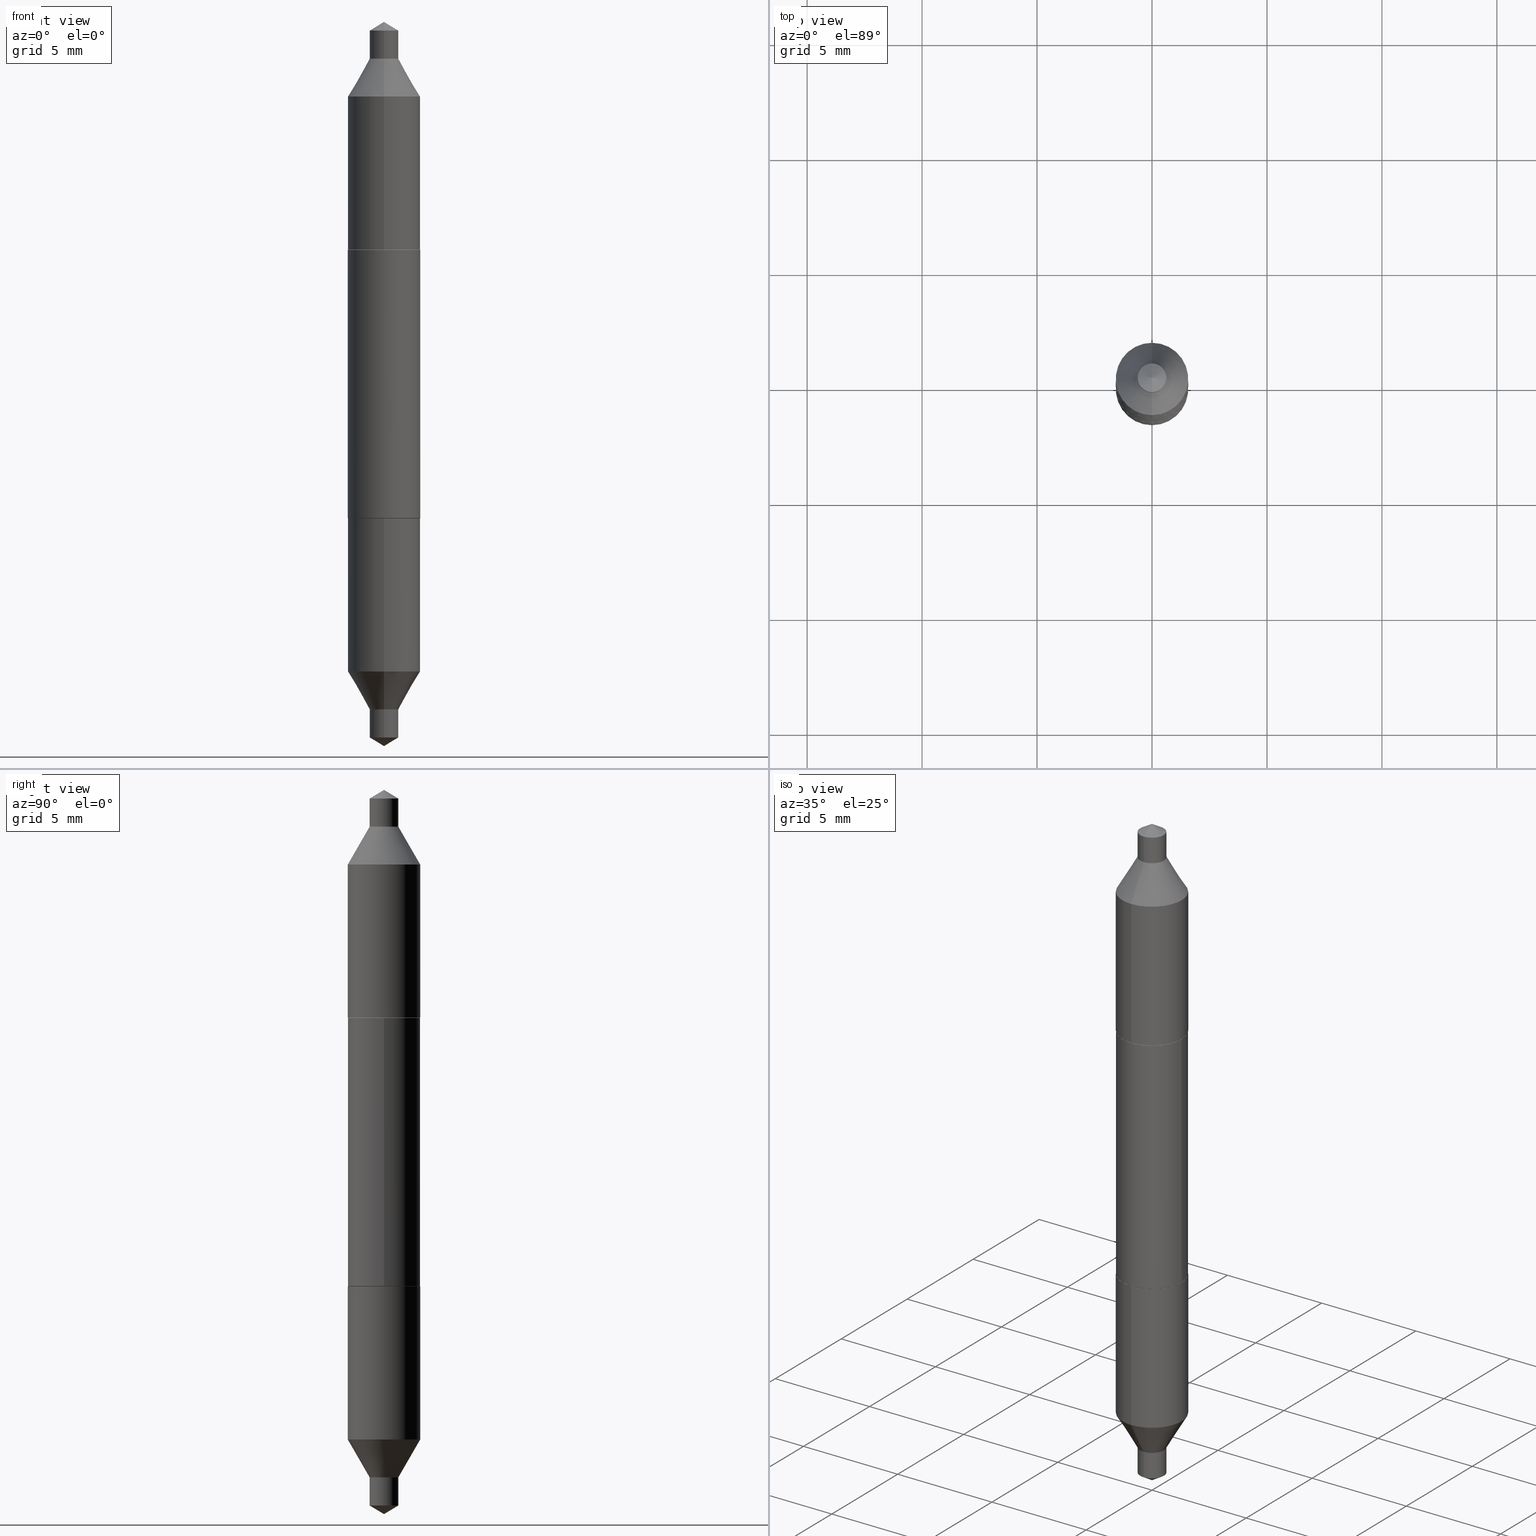
[diagram: canonical four-view strip — front | top / right | iso, engineering-drawing reading convention]
A machine part, canonical four-view strip (front | top / right | iso — engineering-drawing reading convention). The complete STEP part file that produces these views, byte-faithful:
ISO-10303-21;
HEADER;
FILE_DESCRIPTION (( 'STEP AP203' ),
    '1' );
FILE_NAME ('67041.STEP',
    '2024-04-19T15:18:02',
    ( '' ),
    ( '' ),
    'SwSTEP 2.0',
    'SolidWorks 2023',
    '' );
FILE_SCHEMA (( 'CONFIG_CONTROL_DESIGN' ));
ENDSEC;

DATA;
#1 = DIRECTION ( 'NONE',  ( 2.416963263212490591E-29, -3.532302898814723965E-15, -1.000000000000000000 ) ) ;
#2 = FACE_OUTER_BOUND ( 'NONE', #518, .T. ) ;
#3 = ADVANCED_FACE ( 'NONE', ( #360 ), #700, .T. ) ;
#4 = CARTESIAN_POINT ( 'NONE',  ( 4.405364961712676834E-16, 0.06199999999999919464, -0.2300000000000001488 ) ) ;
#5 = LINE ( 'NONE', #470, #157 ) ;
#6 = FACE_OUTER_BOUND ( 'NONE', #15, .T. ) ;
#7 = LINE ( 'NONE', #643, #514 ) ;
#8 = ORIENTED_EDGE ( 'NONE', *, *, #602, .T. ) ;
#9 = DIRECTION ( 'NONE',  ( 6.982962677686265922E-15, 1.000000000000000000, -3.532302898814723965E-15 ) ) ;
#10 = AXIS2_PLACEMENT_3D ( 'NONE', #484, #482, #9 ) ;
#11 = EDGE_CURVE ( 'NONE', #676, #297, #248, .T. ) ;
#12 = CIRCLE ( 'NONE', #249, 0.06150000000000001993 ) ;
#13 = EDGE_CURVE ( 'NONE', #179, #676, #324, .T. ) ;
#14 = APPROVAL_DATE_TIME ( #677, #92 ) ;
#15 = EDGE_LOOP ( 'NONE', ( #522, #408, #438, #450 ) ) ;
#16 = DIRECTION ( 'NONE',  ( -2.416963263212490311E-29, 3.532302898814723965E-15, 1.000000000000000000 ) ) ;
#17 = DIRECTION ( 'NONE',  ( 1.000000000000000000, -6.982962677686265922E-15, 0.000000000000000000 ) ) ;
#18 = ORIENTED_EDGE ( 'NONE', *, *, #493, .T. ) ;
#19 = CARTESIAN_POINT ( 'NONE',  ( -1.717808818710876115E-16, -0.02459999999999918155, 0.2300000000000000377 ) ) ;
#20 = DIRECTION ( 'NONE',  ( 1.000000000000000000, -6.982962677686265922E-15, 0.000000000000000000 ) ) ;
#21 = EDGE_CURVE ( 'NONE', #676, #54, #278, .T. ) ;
#22 = CARTESIAN_POINT ( 'NONE',  ( 0.06200000000000002037, -1.234238653281050355E-15, -0.2294999999999999263 ) ) ;
#23 = CIRCLE ( 'NONE', #424, 0.02459999999999998646 ) ;
#24 = CC_DESIGN_SECURITY_CLASSIFICATION ( #160, ( #656 ) ) ;
#25 = CARTESIAN_POINT ( 'NONE',  ( 0.000000000000000000, 0.000000000000000000, 0.000000000000000000 ) ) ;
#26 = CARTESIAN_POINT ( 'NONE',  ( 1.533864096477825297E-29, -2.139409062900371325E-15, -0.6199999999999999956 ) ) ;
#27 = CC_DESIGN_PERSON_AND_ORGANIZATION_ASSIGNMENT ( #229, #601, ( #109 ) ) ;
#28 = VERTEX_POINT ( 'NONE', #544 ) ;
#29 = DIRECTION ( 'NONE',  ( -6.982962677686265922E-15, -1.000000000000000000, 3.304654831045479808E-15 ) ) ;
#30 = ORIENTED_EDGE ( 'NONE', *, *, #607, .F. ) ;
#31 = COORDINATED_UNIVERSAL_TIME_OFFSET ( 5, 0, .BEHIND. ) ;
#32 = ORIENTED_EDGE ( 'NONE', *, *, #640, .T. ) ;
#33 = CYLINDRICAL_SURFACE ( 'NONE', #349, 0.06199999999999999956 ) ;
#34 = EDGE_LOOP ( 'NONE', ( #132, #365, #611, #415 ) ) ;
#35 = CIRCLE ( 'NONE', #620, 0.02459999999999998299 ) ;
#36 = ADVANCED_FACE ( 'NONE', ( #223 ), #411, .T. ) ;
#37 = AXIS2_PLACEMENT_3D ( 'NONE', #53, #212, #422 ) ;
#38 = APPROVAL_PERSON_ORGANIZATION ( #299, #381, #90 ) ;
#39 = VERTEX_POINT ( 'NONE', #268 ) ;
#40 = CARTESIAN_POINT ( 'NONE',  ( 1.687682507451660463E-16, 0.02460000000000194670, 0.5569999999999999396 ) ) ;
#41 = ORIENTED_EDGE ( 'NONE', *, *, #242, .F. ) ;
#42 = FACE_OUTER_BOUND ( 'NONE', #258, .T. ) ;
#43 = VERTEX_POINT ( 'NONE', #654 ) ;
#44 = VERTEX_POINT ( 'NONE', #542 ) ;
#45 = EDGE_CURVE ( 'NONE', #172, #130, #259, .T. ) ;
#46 = DIRECTION ( 'NONE',  ( -6.982962677686265922E-15, -1.000000000000000000, 3.304654831045479808E-15 ) ) ;
#47 = ORIENTED_EDGE ( 'NONE', *, *, #508, .F. ) ;
#48 = ORIENTED_EDGE ( 'NONE', *, *, #326, .F. ) ;
#49 = CLOSED_SHELL ( 'NONE', ( #97, #128, #651, #136, #253, #530, #3, #660 ) ) ;
#50 = CARTESIAN_POINT ( 'NONE',  ( -1.498517223191743903E-29, 2.190027797265128709E-15, 0.6199999999999999956 ) ) ;
#51 = AXIS2_PLACEMENT_3D ( 'NONE', #540, #327, #378 ) ;
#52 = ORIENTED_EDGE ( 'NONE', *, *, #615, .T. ) ;
#53 = CARTESIAN_POINT ( 'NONE',  ( -1.352804812493065762E-29, 1.958103755846338219E-15, 0.5569999999999999396 ) ) ;
#54 = VERTEX_POINT ( 'NONE', #593 ) ;
#55 = CARTESIAN_POINT ( 'NONE',  ( 1.520751546710408006E-29, -2.158186980487297744E-15, -0.6199999999999999956 ) ) ;
#56 = DIRECTION ( 'NONE',  ( -1.000000000000000000, 6.982962677686265922E-15, -4.876176775795935793E-29 ) ) ;
#57 = EDGE_CURVE ( 'NONE', #142, #697, #329, .T. ) ;
#58 = DIRECTION ( 'NONE',  ( -6.982962677686265922E-15, -1.000000000000000000, 3.304654831045479808E-15 ) ) ;
#59 = AXIS2_PLACEMENT_3D ( 'NONE', #271, #596, #219 ) ;
#60 = FACE_OUTER_BOUND ( 'NONE', #214, .T. ) ;
#61 = CONICAL_SURFACE ( 'NONE', #369, 0.06150000000000001993, 0.7853981633974482790 ) ;
#62 = FACE_OUTER_BOUND ( 'NONE', #699, .T. ) ;
#63 = CARTESIAN_POINT ( 'NONE',  ( -0.06150000000000001993, -3.634076982673504856E-16, -0.2299999999999999267 ) ) ;
#64 = ADVANCED_BREP_SHAPE_REPRESENTATION ( '67041', ( #399, #637, #170, #206 ), #624 ) ;
#65 = DIRECTION ( 'NONE',  ( -2.445468806185136597E-29, 3.491481338843145583E-15, 1.000000000000000000 ) ) ;
#66 = CARTESIAN_POINT ( 'NONE',  ( 1.747935129969982313E-16, 0.02459999999999805745, -0.5570000000000000506 ) ) ;
#67 = CC_DESIGN_DATE_AND_TIME_ASSIGNMENT ( #549, #74, ( #109 ) ) ;
#68 = ADVANCED_FACE ( 'NONE', ( #648 ), #435, .F. ) ;
#69 = DIRECTION ( 'NONE',  ( -2.473974349157782882E-29, 3.450659778871567200E-15, 1.000000000000000000 ) ) ;
#70 = CARTESIAN_POINT ( 'NONE',  ( 1.533979078061162710E-29, -2.139409062900371325E-15, -0.6199999999999999956 ) ) ;
#71 = AXIS2_PLACEMENT_3D ( 'NONE', #506, #668, #29 ) ;
#72 = VECTOR ( 'NONE', #321, 39.37007874015748854 ) ;
#73 = VECTOR ( 'NONE', #69, 39.37007874015748143 ) ;
#74 = DATE_TIME_ROLE ( 'creation_date' ) ;
#75 = ORIENTED_EDGE ( 'NONE', *, *, #143, .F. ) ;
#76 = FACE_OUTER_BOUND ( 'NONE', #293, .T. ) ;
#77 = CC_DESIGN_PERSON_AND_ORGANIZATION_ASSIGNMENT ( #174, #436, ( #160 ) ) ;
#78 = CARTESIAN_POINT ( 'NONE',  ( 1.747935129969900962E-16, 0.02459999999999918155, -0.2300000000000000100 ) ) ;
#79 = DIRECTION ( 'NONE',  ( -2.473974349157782882E-29, 3.450659778871567200E-15, 1.000000000000000000 ) ) ;
#80 = PERSON_AND_ORGANIZATION ( #246, #572 ) ;
#81 = EDGE_CURVE ( 'NONE', #130, #155, #231, .T. ) ;
#82 = CARTESIAN_POINT ( 'NONE',  ( -5.624578254225812687E-30, 8.030407079339232947E-16, 0.2299999999999999267 ) ) ;
#83 = CARTESIAN_POINT ( 'NONE',  ( -5.612350910194886774E-30, 8.012949672645016925E-16, 0.2294999999999999263 ) ) ;
#84 = VECTOR ( 'NONE', #503, 39.37007874015748854 ) ;
#85 = EDGE_LOOP ( 'NONE', ( #93, #75, #52, #684 ) ) ;
#86 = AXIS2_PLACEMENT_3D ( 'NONE', #94, #319, #457 ) ;
#87 = LOCAL_TIME ( 11, 18, 2.000000000000000000, #290 ) ;
#88 = APPROVAL_ROLE ( '' ) ;
#89 = DIRECTION ( 'NONE',  ( -6.982962677686265922E-15, -1.000000000000000000, 4.164402429366257489E-15 ) ) ;
#90 = APPROVAL_ROLE ( '' ) ;
#91 = LINE ( 'NONE', #19, #456 ) ;
#92 = APPROVAL ( #617, 'UNSPECIFIED' ) ;
#93 = ORIENTED_EDGE ( 'NONE', *, *, #57, .F. ) ;
#94 = CARTESIAN_POINT ( 'NONE',  ( 5.624578254225812687E-30, -8.030407079339232947E-16, -0.2299999999999999267 ) ) ;
#95 = CARTESIAN_POINT ( 'NONE',  ( 5.624578254225812687E-30, -8.030407079339232947E-16, -0.2299999999999999267 ) ) ;
#96 = ORIENTED_EDGE ( 'NONE', *, *, #519, .F. ) ;
#97 = ADVANCED_FACE ( 'NONE', ( #164 ), #238, .T. ) ;
#98 = DIRECTION ( 'NONE',  ( 2.416963263212490311E-29, -3.532302898814723965E-15, -1.000000000000000000 ) ) ;
#99 = VERTEX_POINT ( 'NONE', #221 ) ;
#100 = ORIENTED_EDGE ( 'NONE', *, *, #116, .T. ) ;
#101 = DIRECTION ( 'NONE',  ( -2.473974349157782882E-29, 3.450659778871567200E-15, 1.000000000000000000 ) ) ;
#102 = VERTEX_POINT ( 'NONE', #63 ) ;
#103 = AXIS2_PLACEMENT_3D ( 'NONE', #166, #322, #376 ) ;
#104 = DIRECTION ( 'NONE',  ( -6.982962677686265922E-15, -1.000000000000000000, 2.776268286244171659E-15 ) ) ;
#105 = CIRCLE ( 'NONE', #655, 0.02459999999999998299 ) ;
#106 = DIRECTION ( 'NONE',  ( -1.000000000000000000, 6.982962677686265922E-15, -4.876176775795935793E-29 ) ) ;
#107 = LINE ( 'NONE', #657, #146 ) ;
#108 = CARTESIAN_POINT ( 'NONE',  ( -0.06200000000000003425, 4.405364961712622107E-16, 0.2294999999999999263 ) ) ;
#109 = PRODUCT_DEFINITION ( 'UNKNOWN', '', #656, #152 ) ;
#110 = CARTESIAN_POINT ( 'NONE',  ( 0.06150000000000001993, 3.735885032562177875E-16, 0.2299999999999999267 ) ) ;
#111 = DIRECTION ( 'NONE',  ( -2.473974349157782882E-29, 3.450659778871567200E-15, 1.000000000000000000 ) ) ;
#112 = DIRECTION ( 'NONE',  ( -2.473974349157782882E-29, 3.450659778871567200E-15, 1.000000000000000000 ) ) ;
#113 = AXIS2_PLACEMENT_3D ( 'NONE', #115, #332, #218 ) ;
#114 = CIRCLE ( 'NONE', #183, 0.06199999999999999956 ) ;
#115 = CARTESIAN_POINT ( 'NONE',  ( 1.211186594922981775E-29, -1.707877200306588786E-15, -0.4922212997969229731 ) ) ;
#116 = EDGE_CURVE ( 'NONE', #262, #99, #600, .T. ) ;
#117 = DIRECTION ( 'NONE',  ( -2.473974349157782882E-29, 3.450659778871567200E-15, 1.000000000000000000 ) ) ;
#118 = DIRECTION ( 'NONE',  ( -2.445468806185136597E-29, 3.491481338843145583E-15, 1.000000000000000000 ) ) ;
#119 = CARTESIAN_POINT ( 'NONE',  ( -1.352804812493065762E-29, 1.958103755846338219E-15, 0.5569999999999999396 ) ) ;
#120 = CARTESIAN_POINT ( 'NONE',  ( -0.06200000000000002037, -3.607584710932394325E-16, -0.2294999999999999263 ) ) ;
#121 = FACE_OUTER_BOUND ( 'NONE', #252, .T. ) ;
#122 = VECTOR ( 'NONE', #1, 39.37007874015748143 ) ;
#123 = CIRCLE ( 'NONE', #622, 0.06199999999999999956 ) ;
#124 = CARTESIAN_POINT ( 'NONE',  ( 0.06150000000000001993, -1.232492912611628851E-15, -0.2299999999999999267 ) ) ;
#125 = ORIENTED_EDGE ( 'NONE', *, *, #292, .T. ) ;
#126 = ORIENTED_EDGE ( 'NONE', *, *, #313, .T. ) ;
#127 = DIRECTION ( 'NONE',  ( -6.982962677686265922E-15, -1.000000000000000000, 2.776268286244172054E-15 ) ) ;
#128 = ADVANCED_FACE ( 'NONE', ( #6 ), #371, .T. ) ;
#129 = CARTESIAN_POINT ( 'NONE',  ( 5.624578254225812687E-30, -8.030407079339232947E-16, -0.2299999999999999267 ) ) ;
#130 = VERTEX_POINT ( 'NONE', #120 ) ;
#131 = CARTESIAN_POINT ( 'NONE',  ( -0.06150000000000001993, 1.224961334796872701E-15, 0.2299999999999999267 ) ) ;
#132 = ORIENTED_EDGE ( 'NONE', *, *, #602, .F. ) ;
#133 = DIRECTION ( 'NONE',  ( -3.491481338843115211E-15, -0.4999999999999913403, 0.8660254037844434816 ) ) ;
#134 = CYLINDRICAL_SURFACE ( 'NONE', #368, 0.02459999999999998299 ) ;
#135 = CONICAL_SURFACE ( 'NONE', #502, 0.06150000000000001993, 0.7853981633974482790 ) ;
#136 = ADVANCED_FACE ( 'NONE', ( #60 ), #380, .T. ) ;
#137 = CC_DESIGN_PERSON_AND_ORGANIZATION_ASSIGNMENT ( #279, #613, ( #656 ) ) ;
#138 = DIRECTION ( 'NONE',  ( -2.445468806185136597E-29, 3.491481338843145583E-15, 1.000000000000000000 ) ) ;
#139 = DIRECTION ( 'NONE',  ( -6.982962677686265922E-15, -1.000000000000000000, 2.776268286244171659E-15 ) ) ;
#140 = ORIENTED_EDGE ( 'NONE', *, *, #406, .T. ) ;
#141 = DIRECTION ( 'NONE',  ( -6.982962677686265922E-15, -1.000000000000000000, 2.776268286244172054E-15 ) ) ;
#142 = VERTEX_POINT ( 'NONE', #283 ) ;
#143 = EDGE_CURVE ( 'NONE', #619, #142, #608, .T. ) ;
#144 = ORIENTED_EDGE ( 'NONE', *, *, #292, .F. ) ;
#145 = AXIS2_PLACEMENT_3D ( 'NONE', #272, #16, #589 ) ;
#146 = VECTOR ( 'NONE', #485, 39.37007874015748143 ) ;
#147 = DIRECTION ( 'NONE',  ( -6.982962677686265133E-15, -1.000000000000000000, 3.535573257325053711E-15 ) ) ;
#148 = ORIENTED_EDGE ( 'NONE', *, *, #685, .T. ) ;
#149 = EDGE_CURVE ( 'NONE', #142, #619, #443, .T. ) ;
#150 = ORIENTED_EDGE ( 'NONE', *, *, #21, .T. ) ;
#151 = DIRECTION ( 'NONE',  ( -2.473974349157782882E-29, 3.450659778871567200E-15, 1.000000000000000000 ) ) ;
#152 = DESIGN_CONTEXT ( 'detailed design', #547, 'design' ) ;
#153 = ORIENTED_EDGE ( 'NONE', *, *, #198, .T. ) ;
#154 = DIRECTION ( 'NONE',  ( -6.982962677686265922E-15, -1.000000000000000000, 2.776268286244172054E-15 ) ) ;
#155 = VERTEX_POINT ( 'NONE', #108 ) ;
#156 = CONICAL_SURFACE ( 'NONE', #545, 65.52281426576902845, 1.029744258676658530 ) ;
#157 = VECTOR ( 'NONE', #171, 39.37007874015748143 ) ;
#158 = ADVANCED_FACE ( 'NONE', ( #650 ), #536, .T. ) ;
#159 = CARTESIAN_POINT ( 'NONE',  ( 0.06200000000000002037, 3.683512812479530302E-16, 0.2294999999999999263 ) ) ;
#160 = SECURITY_CLASSIFICATION ( '', '', #487 ) ;
#161 = EDGE_CURVE ( 'NONE', #634, #99, #325, .T. ) ;
#162 = CARTESIAN_POINT ( 'NONE',  ( 4.253508758618292960E-16, 0.06200000000000079753, 0.2299999999999997324 ) ) ;
#163 = CYLINDRICAL_SURFACE ( 'NONE', #489, 0.06200000000000001343 ) ;
#164 = FACE_OUTER_BOUND ( 'NONE', #552, .T. ) ;
#165 = DIRECTION ( 'NONE',  ( 2.473974349157782602E-29, -3.450659778871567200E-15, -1.000000000000000000 ) ) ;
#166 = CARTESIAN_POINT ( 'NONE',  ( -9.587325710587766122E-28, 1.337039491779741545E-13, 38.75007874015748399 ) ) ;
#167 = CARTESIAN_POINT ( 'NONE',  ( 0.000000000000000000, 0.000000000000000000, 0.000000000000000000 ) ) ;
#168 = CIRCLE ( 'NONE', #546, 0.06200000000000002037 ) ;
#169 = CARTESIAN_POINT ( 'NONE',  ( 0.000000000000000000, 0.000000000000000000, 0.000000000000000000 ) ) ;
#170 = MANIFOLD_SOLID_BREP ( 'Body-Move/Copy2[3]', #49 ) ;
#171 = DIRECTION ( 'NONE',  ( -3.491481338843073402E-15, -0.4999999999999974465, -0.8660254037844400399 ) ) ;
#172 = VERTEX_POINT ( 'NONE', #22 ) ;
#173 = DIRECTION ( 'NONE',  ( 2.445468806185136597E-29, -3.491481338843145583E-15, -1.000000000000000000 ) ) ;
#174 = PERSON_AND_ORGANIZATION ( #246, #572 ) ;
#175 = CALENDAR_DATE ( 2024, 19, 4 ) ;
#176 = ORIENTED_EDGE ( 'NONE', *, *, #628, .T. ) ;
#177 = DIRECTION ( 'NONE',  ( -2.473974349157782882E-29, 3.450659778871567200E-15, 1.000000000000000000 ) ) ;
#178 =( NAMED_UNIT ( * ) PLANE_ANGLE_UNIT ( ) SI_UNIT ( $, .RADIAN. ) );
#179 = VERTEX_POINT ( 'NONE', #553 ) ;
#180 = DIRECTION ( 'NONE',  ( 0.7071067811865474617, -7.406550393246804314E-15, -0.7071067811865474617 ) ) ;
#181 = AXIS2_PLACEMENT_3D ( 'NONE', #539, #118, #486 ) ;
#182 = ADVANCED_FACE ( 'NONE', ( #447 ), #550, .T. ) ;
#183 = AXIS2_PLACEMENT_3D ( 'NONE', #426, #652, #647 ) ;
#184 =( NAMED_UNIT ( * ) SI_UNIT ( $, .STERADIAN. ) SOLID_ANGLE_UNIT ( ) );
#185 = EDGE_LOOP ( 'NONE', ( #353, #515, #472, #30 ) ) ;
#186 = DIRECTION ( 'NONE',  ( -6.982962677686265922E-15, -1.000000000000000000, 3.304654831045479808E-15 ) ) ;
#187 = PERSON_AND_ORGANIZATION ( #246, #572 ) ;
#188 = DIRECTION ( 'NONE',  ( -2.445468806185136597E-29, 3.491481338843145583E-15, 1.000000000000000000 ) ) ;
#189 = ORIENTED_EDGE ( 'NONE', *, *, #615, .F. ) ;
#190 = DIRECTION ( 'NONE',  ( -2.445468806185136597E-29, 3.491481338843145583E-15, 1.000000000000000000 ) ) ;
#191 = CARTESIAN_POINT ( 'NONE',  ( 5.624578254225812687E-30, -8.030407079339232947E-16, -0.2299999999999999267 ) ) ;
#192 = CIRCLE ( 'NONE', #433, 0.06200000000000002037 ) ;
#193 = AXIS2_PLACEMENT_3D ( 'NONE', #658, #173, #383 ) ;
#194 = AXIS2_PLACEMENT_3D ( 'NONE', #95, #151, #154 ) ;
#195 = CARTESIAN_POINT ( 'NONE',  ( -1.469347950229935068E-29, 2.128427264494849621E-15, 0.6052188287719221238 ) ) ;
#196 = ORIENTED_EDGE ( 'NONE', *, *, #263, .T. ) ;
#197 = CARTESIAN_POINT ( 'NONE',  ( -5.624578254225812687E-30, 8.030407079339232947E-16, 0.2299999999999999267 ) ) ;
#198 = EDGE_CURVE ( 'NONE', #565, #44, #594, .T. ) ;
#199 = FACE_OUTER_BOUND ( 'NONE', #504, .T. ) ;
#200 = EDGE_LOOP ( 'NONE', ( #281, #576, #250, #277 ) ) ;
#201 = ADVANCED_FACE ( 'NONE', ( #398 ), #555, .T. ) ;
#202 = ORIENTED_EDGE ( 'NONE', *, *, #220, .F. ) ;
#203 = AXIS2_PLACEMENT_3D ( 'NONE', #241, #499, #342 ) ;
#204 = CONICAL_SURFACE ( 'NONE', #59, 0.02459999999999998646, 0.5235987755982924874 ) ;
#205 = ORIENTED_EDGE ( 'NONE', *, *, #583, .T. ) ;
#206 = AXIS2_PLACEMENT_3D ( 'NONE', #25, #621, #674 ) ;
#207 = LINE ( 'NONE', #40, #304 ) ;
#208 = EDGE_LOOP ( 'NONE', ( #202, #471, #400, #309 ) ) ;
#209 = FACE_OUTER_BOUND ( 'NONE', #185, .T. ) ;
#210 = ORIENTED_EDGE ( 'NONE', *, *, #694, .T. ) ;
#211 = ADVANCED_FACE ( 'NONE', ( #289 ), #33, .T. ) ;
#212 = DIRECTION ( 'NONE',  ( -2.416963263212490311E-29, 3.532302898814723965E-15, 1.000000000000000000 ) ) ;
#213 = EDGE_LOOP ( 'NONE', ( #579, #150, #47, #417 ) ) ;
#214 = EDGE_LOOP ( 'NONE', ( #671, #312 ) ) ;
#215 = AXIS2_PLACEMENT_3D ( 'NONE', #387, #79, #614 ) ;
#216 = VECTOR ( 'NONE', #133, 39.37007874015748854 ) ;
#217 = CARTESIAN_POINT ( 'NONE',  ( -5.624578254225812687E-30, 8.030407079339232947E-16, 0.2299999999999999267 ) ) ;
#218 = DIRECTION ( 'NONE',  ( -6.982962677686265922E-15, -1.000000000000000000, 3.304654831045479413E-15 ) ) ;
#219 = DIRECTION ( 'NONE',  ( -6.982962677686265922E-15, -1.000000000000000000, 2.776268286244171659E-15 ) ) ;
#220 = EDGE_CURVE ( 'NONE', #44, #155, #675, .T. ) ;
#221 = CARTESIAN_POINT ( 'NONE',  ( 1.747935129969993900E-16, 0.02459999999999788398, -0.6052188287719222348 ) ) ;
#222 = DIRECTION ( 'NONE',  ( -2.445468806185136597E-29, 3.491481338843145583E-15, 1.000000000000000000 ) ) ;
#223 = FACE_OUTER_BOUND ( 'NONE', #466, .T. ) ;
#224 = APPROVAL_STATUS ( 'not_yet_approved' ) ;
#225 = CARTESIAN_POINT ( 'NONE',  ( -1.717808818710763949E-16, -0.02460000000000078443, -0.2299999999999998712 ) ) ;
#226 = VECTOR ( 'NONE', #112, 39.37007874015748143 ) ;
#227 = CARTESIAN_POINT ( 'NONE',  ( -0.06200000000000001343, 4.405364961712622107E-16, -3.049739755958042274E-30 ) ) ;
#228 = VECTOR ( 'NONE', #240, 39.37007874015748854 ) ;
#229 = PERSON_AND_ORGANIZATION ( #246, #572 ) ;
#230 = VERTEX_POINT ( 'NONE', #618 ) ;
#231 = LINE ( 'NONE', #227, #569 ) ;
#232 = CALENDAR_DATE ( 2024, 19, 4 ) ;
#233 = EDGE_CURVE ( 'NONE', #517, #155, #192, .T. ) ;
#234 = ORIENTED_EDGE ( 'NONE', *, *, #11, .T. ) ;
#235 = DIRECTION ( 'NONE',  ( 1.000000000000000000, -6.982962677686265133E-15, 0.000000000000000000 ) ) ;
#236 = LINE ( 'NONE', #124, #228 ) ;
#237 = CARTESIAN_POINT ( 'NONE',  ( 5.624578254225812687E-30, -8.030407079339232947E-16, -0.2299999999999999267 ) ) ;
#238 = CONICAL_SURFACE ( 'NONE', #193, 0.06150000000000001993, 0.7853981633974482790 ) ;
#239 = CONICAL_SURFACE ( 'NONE', #632, 0.02459999999999998646, 0.5235987755982924874 ) ;
#240 = DIRECTION ( 'NONE',  ( 0.7071067811865474617, -2.468850131082256666E-15, 0.7071067811865474617 ) ) ;
#241 = CARTESIAN_POINT ( 'NONE',  ( 1.490739583125343083E-29, -2.097793228652492577E-15, -0.6052188287719221238 ) ) ;
#242 = EDGE_CURVE ( 'NONE', #102, #130, #440, .T. ) ;
#243 = ORIENTED_EDGE ( 'NONE', *, *, #392, .T. ) ;
#244 = COORDINATED_UNIVERSAL_TIME_OFFSET ( 5, 0, .BEHIND. ) ;
#245 = CARTESIAN_POINT ( 'NONE',  ( -4.329436860165363856E-16, -0.06200000000000171346, -0.4922212997969227510 ) ) ;
#246 = PERSON ( 'UNSPECIFIED', 'UNSPECIFIED', 'UNSPECIFIED', ('UNSPECIFIED'), ('UNSPECIFIED'), ('UNSPECIFIED') ) ;
#247 = DIRECTION ( 'NONE',  ( -2.445468806185136597E-29, 3.491481338843145583E-15, 1.000000000000000000 ) ) ;
#248 = CIRCLE ( 'NONE', #113, 0.06200000000000000649 ) ;
#249 = AXIS2_PLACEMENT_3D ( 'NONE', #382, #65, #599 ) ;
#250 = ORIENTED_EDGE ( 'NONE', *, *, #606, .T. ) ;
#251 = FACE_OUTER_BOUND ( 'NONE', #635, .T. ) ;
#252 = EDGE_LOOP ( 'NONE', ( #439, #423, #18 ) ) ;
#253 = ADVANCED_FACE ( 'NONE', ( #76 ), #336, .T. ) ;
#254 = CARTESIAN_POINT ( 'NONE',  ( -1.498632204775081316E-29, 2.190027797265128709E-15, 0.6199999999999999956 ) ) ;
#255 = ORIENTED_EDGE ( 'NONE', *, *, #45, .F. ) ;
#256 = EDGE_LOOP ( 'NONE', ( #462, #100, #446 ) ) ;
#257 = CARTESIAN_POINT ( 'NONE',  ( 0.06200000000000001343, -4.329436860165486130E-16, 3.023229600993481018E-30 ) ) ;
#258 = EDGE_LOOP ( 'NONE', ( #667, #331, #355, #662 ) ) ;
#259 = CIRCLE ( 'NONE', #181, 0.06200000000000002037 ) ;
#260 = AXIS2_PLACEMENT_3D ( 'NONE', #356, #302, #513 ) ;
#261 = DIRECTION ( 'NONE',  ( -6.982962677686266711E-15, -1.000000000000000000, 3.468864327941562660E-15 ) ) ;
#262 = VERTEX_POINT ( 'NONE', #26 ) ;
#263 = EDGE_CURVE ( 'NONE', #99, #634, #35, .T. ) ;
#264 = CC_DESIGN_PERSON_AND_ORGANIZATION_ASSIGNMENT ( #393, #665, ( #656 ) ) ;
#265 = CARTESIAN_POINT ( 'NONE',  ( 5.624578254225812687E-30, -8.030407079339232947E-16, -0.2299999999999999267 ) ) ;
#266 = ORIENTED_EDGE ( 'NONE', *, *, #448, .T. ) ;
#267 = LINE ( 'NONE', #225, #226 ) ;
#268 = CARTESIAN_POINT ( 'NONE',  ( 0.06150000000000001993, -1.232492912611628851E-15, -0.2299999999999999267 ) ) ;
#269 = VECTOR ( 'NONE', #373, 39.37007874015748143 ) ;
#270 = CIRCLE ( 'NONE', #51, 0.06200000000000000649 ) ;
#271 = CARTESIAN_POINT ( 'NONE',  ( -1.352804812493065762E-29, 1.958103755846338219E-15, 0.5569999999999999396 ) ) ;
#272 = CARTESIAN_POINT ( 'NONE',  ( -1.196237073863572951E-29, 1.729285765337559218E-15, 0.4922212997969229731 ) ) ;
#273 = FACE_OUTER_BOUND ( 'NONE', #34, .T. ) ;
#274 = ADVANCED_FACE ( 'NONE', ( #496 ), #134, .T. ) ;
#275 = DIRECTION ( 'NONE',  ( -2.445468806185136597E-29, 3.491481338843145583E-15, 1.000000000000000000 ) ) ;
#276 = CARTESIAN_POINT ( 'NONE',  ( 5.624578254225812687E-30, -8.030407079339232947E-16, -0.2299999999999999267 ) ) ;
#277 = ORIENTED_EDGE ( 'NONE', *, *, #143, .T. ) ;
#278 = LINE ( 'NONE', #4, #488 ) ;
#279 = PERSON_AND_ORGANIZATION ( #246, #572 ) ;
#280 = CC_DESIGN_DATE_AND_TIME_ASSIGNMENT ( #616, #339, ( #160 ) ) ;
#281 = ORIENTED_EDGE ( 'NONE', *, *, #374, .F. ) ;
#282 = AXIS2_PLACEMENT_3D ( 'NONE', #217, #323, #590 ) ;
#283 = CARTESIAN_POINT ( 'NONE',  ( 4.253508758618293946E-16, 0.06200000000000174122, 0.4922212997969227510 ) ) ;
#284 = EDGE_CURVE ( 'NONE', #458, #653, #442, .T. ) ;
#285 = FACE_OUTER_BOUND ( 'NONE', #208, .T. ) ;
#286 = CARTESIAN_POINT ( 'NONE',  ( 1.490739583125343083E-29, -2.097793228652492577E-15, -0.6052188287719221238 ) ) ;
#287 = COORDINATED_UNIVERSAL_TIME_OFFSET ( 5, 0, .BEHIND. ) ;
#288 = VERTEX_POINT ( 'NONE', #298 ) ;
#289 = FACE_OUTER_BOUND ( 'NONE', #213, .T. ) ;
#290 = COORDINATED_UNIVERSAL_TIME_OFFSET ( 5, 0, .BEHIND. ) ;
#291 = LENGTH_MEASURE_WITH_UNIT ( LENGTH_MEASURE( 0.02539999999999999897 ), #666 );
#292 = EDGE_CURVE ( 'NONE', #697, #541, #644, .T. ) ;
#293 = EDGE_LOOP ( 'NONE', ( #41, #568, #210, #315 ) ) ;
#294 = DIRECTION ( 'NONE',  ( 1.000000000000000000, -6.982962677686267499E-15, 0.000000000000000000 ) ) ;
#295 = AXIS2_PLACEMENT_3D ( 'NONE', #307, #98, #147 ) ;
#296 = APPROVAL_PERSON_ORGANIZATION ( #451, #92, #88 ) ;
#297 = VERTEX_POINT ( 'NONE', #245 ) ;
#298 = CARTESIAN_POINT ( 'NONE',  ( 1.687682507451654546E-16, 0.02460000000000194670, 0.5569999999999999396 ) ) ;
#299 = PERSON_AND_ORGANIZATION ( #246, #572 ) ;
#300 = DIRECTION ( 'NONE',  ( 2.416963263212490591E-29, -3.532302898814723965E-15, -1.000000000000000000 ) ) ;
#301 = ORIENTED_EDGE ( 'NONE', *, *, #427, .T. ) ;
#302 = DIRECTION ( 'NONE',  ( -2.445468806185136597E-29, 3.491481338843145583E-15, 1.000000000000000000 ) ) ;
#303 = CLOSED_SHELL ( 'NONE', ( #584, #274, #396, #507, #413, #68, #306, #551, #473 ) ) ;
#304 = VECTOR ( 'NONE', #364, 39.37007874015748854 ) ;
#305 = EDGE_LOOP ( 'NONE', ( #405, #469, #8, #642 ) ) ;
#306 = ADVANCED_FACE ( 'NONE', ( #121 ), #156, .T. ) ;
#307 = CARTESIAN_POINT ( 'NONE',  ( 9.365096048666826408E-28, -1.368864044219505421E-13, -38.75007874015748399 ) ) ;
#308 = ORIENTED_EDGE ( 'NONE', *, *, #220, .T. ) ;
#309 = ORIENTED_EDGE ( 'NONE', *, *, #233, .T. ) ;
#310 = CYLINDRICAL_SURFACE ( 'NONE', #194, 0.02459999999999998299 ) ;
#311 = ORIENTED_EDGE ( 'NONE', *, *, #335, .T. ) ;
#312 = ORIENTED_EDGE ( 'NONE', *, *, #630, .F. ) ;
#313 = EDGE_CURVE ( 'NONE', #653, #603, #91, .T. ) ;
#314 = CYLINDRICAL_SURFACE ( 'NONE', #479, 0.06199999999999999956 ) ;
#315 = ORIENTED_EDGE ( 'NONE', *, *, #498, .F. ) ;
#316 = AXIS2_PLACEMENT_3D ( 'NONE', #191, #395, #672 ) ;
#317 = CONICAL_SURFACE ( 'NONE', #414, 65.52281426576902845, 1.029744258676658530 ) ;
#318 = LOCAL_TIME ( 11, 18, 2.000000000000000000, #661 ) ;
#319 = DIRECTION ( 'NONE',  ( -2.445468806185136597E-29, 3.491481338843145583E-15, 1.000000000000000000 ) ) ;
#320 = ORIENTED_EDGE ( 'NONE', *, *, #694, .F. ) ;
#321 = DIRECTION ( 'NONE',  ( -5.985567269335957057E-15, -0.8571673007021125557, 0.5150380749100536004 ) ) ;
#322 = DIRECTION ( 'NONE',  ( -2.473974349157782882E-29, 3.450659778871567200E-15, 1.000000000000000000 ) ) ;
#323 = DIRECTION ( 'NONE',  ( 2.416963263212490311E-29, -3.532302898814723965E-15, -1.000000000000000000 ) ) ;
#324 = LINE ( 'NONE', #66, #702 ) ;
#325 = CIRCLE ( 'NONE', #203, 0.02459999999999998299 ) ;
#326 = EDGE_CURVE ( 'NONE', #565, #517, #510, .T. ) ;
#327 = DIRECTION ( 'NONE',  ( -2.473974349157782882E-29, 3.450659778871567200E-15, 1.000000000000000000 ) ) ;
#328 = LOCAL_TIME ( 11, 18, 2.000000000000000000, #287 ) ;
#329 = LINE ( 'NONE', #162, #122 ) ;
#330 = DIRECTION ( 'NONE',  ( -6.982962677686265922E-15, -1.000000000000000000, 3.304654831045479808E-15 ) ) ;
#331 = ORIENTED_EDGE ( 'NONE', *, *, #13, .T. ) ;
#332 = DIRECTION ( 'NONE',  ( -2.473974349157782882E-29, 3.450659778871567200E-15, 1.000000000000000000 ) ) ;
#333 = CARTESIAN_POINT ( 'NONE',  ( -1.717808818710670765E-16, -0.02460000000000207507, -0.6052188287719220128 ) ) ;
#334 = DIRECTION ( 'NONE',  ( 2.438088387897960049E-29, -3.491481338843145188E-15, -1.000000000000000000 ) ) ;
#335 = EDGE_CURVE ( 'NONE', #297, #43, #641, .T. ) ;
#336 = CONICAL_SURFACE ( 'NONE', #582, 0.06150000000000001993, 0.7853981633974482790 ) ;
#337 = DIRECTION ( 'NONE',  ( -2.445468806185136597E-29, 3.491481338843145583E-15, 1.000000000000000000 ) ) ;
#338 = CARTESIAN_POINT ( 'NONE',  ( 0.06150000000000001993, 3.735885032562177875E-16, 0.2299999999999999267 ) ) ;
#339 = DATE_TIME_ROLE ( 'classification_date' ) ;
#340 = APPLICATION_PROTOCOL_DEFINITION ( 'international standard', 'config_control_design', 1994, #664 ) ;
#341 = ORIENTED_EDGE ( 'NONE', *, *, #607, .T. ) ;
#342 = DIRECTION ( 'NONE',  ( -6.982962677686265922E-15, -1.000000000000000000, 2.776268286244172054E-15 ) ) ;
#343 = EDGE_CURVE ( 'NONE', #155, #517, #168, .T. ) ;
#344 = DIRECTION ( 'NONE',  ( -0.7071067811865474617, 2.382254525458707609E-15, -0.7071067811865474617 ) ) ;
#345 = DIMENSIONAL_EXPONENTS ( 1.000000000000000000, 0.000000000000000000, 0.000000000000000000, 0.000000000000000000, 0.000000000000000000, 0.000000000000000000, 0.000000000000000000 ) ;
#346 = ORIENTED_EDGE ( 'NONE', *, *, #508, .T. ) ;
#347 = CARTESIAN_POINT ( 'NONE',  ( -5.624578254225812687E-30, 8.030407079339232947E-16, 0.2299999999999999267 ) ) ;
#348 = CARTESIAN_POINT ( 'NONE',  ( -5.624578254225812687E-30, 8.030407079339232947E-16, 0.2299999999999999267 ) ) ;
#349 = AXIS2_PLACEMENT_3D ( 'NONE', #237, #449, #186 ) ;
#350 = AXIS2_PLACEMENT_3D ( 'NONE', #683, #686, #139 ) ;
#351 = LOCAL_TIME ( 11, 18, 2.000000000000000000, #244 ) ;
#352 = CALENDAR_DATE ( 2024, 19, 4 ) ;
#353 = ORIENTED_EDGE ( 'NONE', *, *, #161, .T. ) ;
#354 = CARTESIAN_POINT ( 'NONE',  ( -5.624578254225812687E-30, 8.030407079339232947E-16, 0.2299999999999999267 ) ) ;
#355 = ORIENTED_EDGE ( 'NONE', *, *, #531, .F. ) ;
#356 = CARTESIAN_POINT ( 'NONE',  ( 5.612350910194886774E-30, -8.012949672645016925E-16, -0.2294999999999999263 ) ) ;
#357 = CC_DESIGN_PERSON_AND_ORGANIZATION_ASSIGNMENT ( #187, #397, ( #481 ) ) ;
#358 = DIRECTION ( 'NONE',  ( -2.473974349157782882E-29, 3.450659778871567200E-15, 1.000000000000000000 ) ) ;
#359 = AXIS2_PLACEMENT_3D ( 'NONE', #169, #275, #533 ) ;
#360 = FACE_OUTER_BOUND ( 'NONE', #367, .T. ) ;
#361 = AXIS2_PLACEMENT_3D ( 'NONE', #119, #429, #434 ) ;
#362 = DIRECTION ( 'NONE',  ( 2.416963263212490311E-29, -3.532302898814723965E-15, -1.000000000000000000 ) ) ;
#363 = ORIENTED_EDGE ( 'NONE', *, *, #343, .T. ) ;
#364 = DIRECTION ( 'NONE',  ( 3.430248998885747243E-15, 0.4999999999999913403, -0.8660254037844434816 ) ) ;
#365 = ORIENTED_EDGE ( 'NONE', *, *, #374, .T. ) ;
#366 = DIRECTION ( 'NONE',  ( -2.445468806185136877E-29, 3.491481338843145188E-15, 1.000000000000000000 ) ) ;
#367 = EDGE_LOOP ( 'NONE', ( #153, #148 ) ) ;
#368 = AXIS2_PLACEMENT_3D ( 'NONE', #354, #561, #89 ) ;
#369 = AXIS2_PLACEMENT_3D ( 'NONE', #347, #437, #20 ) ;
#370 = CYLINDRICAL_SURFACE ( 'NONE', #282, 0.02459999999999998299 ) ;
#371 = CYLINDRICAL_SURFACE ( 'NONE', #359, 0.06200000000000001343 ) ;
#372 = DIRECTION ( 'NONE',  ( -2.473974349157782882E-29, 3.450659778871567200E-15, 1.000000000000000000 ) ) ;
#373 = DIRECTION ( 'NONE',  ( 6.090539988449795002E-15, 0.8571673007021161084, 0.5150380749100477162 ) ) ;
#374 = EDGE_CURVE ( 'NONE', #288, #142, #207, .T. ) ;
#375 = CARTESIAN_POINT ( 'NONE',  ( -4.329436860165540857E-16, -0.06199999999999919464, 0.2300000000000001488 ) ) ;
#376 = DIRECTION ( 'NONE',  ( -6.982962677686266711E-15, -1.000000000000000000, 3.468864327941562660E-15 ) ) ;
#377 = CIRCLE ( 'NONE', #350, 0.02459999999999998646 ) ;
#378 = DIRECTION ( 'NONE',  ( -6.982962677686265922E-15, -1.000000000000000000, 3.304654831045479413E-15 ) ) ;
#379 = CC_DESIGN_APPROVAL ( #92, ( #109 ) ) ;
#380 = PLANE ( 'NONE',  #500 ) ;
#381 = APPROVAL ( #562, 'UNSPECIFIED' ) ;
#382 = CARTESIAN_POINT ( 'NONE',  ( 5.624578254225812687E-30, -8.030407079339232947E-16, -0.2299999999999999267 ) ) ;
#383 = DIRECTION ( 'NONE',  ( 1.000000000000000000, -6.982962677686265922E-15, 0.000000000000000000 ) ) ;
#384 = CALENDAR_DATE ( 2024, 19, 4 ) ;
#385 = CARTESIAN_POINT ( 'NONE',  ( 4.253508758618261406E-16, 0.06200000000000079753, 0.2299999999999997324 ) ) ;
#386 = ORIENTED_EDGE ( 'NONE', *, *, #242, .T. ) ;
#387 = CARTESIAN_POINT ( 'NONE',  ( 5.624578254225812687E-30, -8.030407079339232947E-16, -0.2299999999999999267 ) ) ;
#388 = AXIS2_PLACEMENT_3D ( 'NONE', #631, #528, #578 ) ;
#389 = CIRCLE ( 'NONE', #526, 0.06150000000000001993 ) ;
#390 = CARTESIAN_POINT ( 'NONE',  ( 5.624578254225812687E-30, -8.030407079339232947E-16, -0.2299999999999999267 ) ) ;
#391 = ADVANCED_FACE ( 'NONE', ( #42 ), #692, .T. ) ;
#392 = EDGE_CURVE ( 'NONE', #179, #28, #23, .T. ) ;
#393 = PERSON_AND_ORGANIZATION ( #246, #572 ) ;
#394 = MECHANICAL_CONTEXT ( 'NONE', #664, 'mechanical' ) ;
#395 = DIRECTION ( 'NONE',  ( -2.473974349157782882E-29, 3.450659778871567200E-15, 1.000000000000000000 ) ) ;
#396 = ADVANCED_FACE ( 'NONE', ( #199 ), #559, .T. ) ;
#397 = PERSON_AND_ORGANIZATION_ROLE ( 'design_owner' ) ;
#398 = FACE_OUTER_BOUND ( 'NONE', #412, .T. ) ;
#399 = MANIFOLD_SOLID_BREP ( 'Body-Move/Copy2[1]', #585 ) ;
#400 = ORIENTED_EDGE ( 'NONE', *, *, #326, .T. ) ;
#401 = DIRECTION ( 'NONE',  ( -2.445468806185136597E-29, 3.491481338843145583E-15, 1.000000000000000000 ) ) ;
#402 = VECTOR ( 'NONE', #366, 39.37007874015748143 ) ;
#403 = EDGE_LOOP ( 'NONE', ( #626, #234, #311, #695 ) ) ;
#404 = ADVANCED_FACE ( 'NONE', ( #209 ), #310, .T. ) ;
#405 = ORIENTED_EDGE ( 'NONE', *, *, #427, .F. ) ;
#406 = EDGE_CURVE ( 'NONE', #458, #230, #516, .T. ) ;
#407 = DIRECTION ( 'NONE',  ( -2.416963263212490311E-29, 3.532302898814723965E-15, 1.000000000000000000 ) ) ;
#408 = ORIENTED_EDGE ( 'NONE', *, *, #81, .T. ) ;
#409 = DIRECTION ( 'NONE',  ( 2.416963263212490311E-29, -3.532302898814723965E-15, -1.000000000000000000 ) ) ;
#410 = CARTESIAN_POINT ( 'NONE',  ( -4.329436860165427951E-16, -0.06200000000000079753, -0.2299999999999997324 ) ) ;
#411 = CONICAL_SURFACE ( 'NONE', #478, 0.02459999999999998646, 0.5235987755982924874 ) ;
#412 = EDGE_LOOP ( 'NONE', ( #573, #196, #341, #623 ) ) ;
#413 = ADVANCED_FACE ( 'NONE', ( #688 ), #314, .T. ) ;
#414 = AXIS2_PLACEMENT_3D ( 'NONE', #636, #358, #261 ) ;
#415 = ORIENTED_EDGE ( 'NONE', *, *, #606, .F. ) ;
#416 = PRODUCT_DEFINITION_SHAPE ( 'NONE', 'NONE',  #109 ) ;
#417 = ORIENTED_EDGE ( 'NONE', *, *, #335, .F. ) ;
#418 = FACE_OUTER_BOUND ( 'NONE', #256, .T. ) ;
#419 = ORIENTED_EDGE ( 'NONE', *, *, #284, .F. ) ;
#420 = DIRECTION ( 'NONE',  ( -2.416963263212490311E-29, 3.532302898814723965E-15, 1.000000000000000000 ) ) ;
#421 = CARTESIAN_POINT ( 'NONE',  ( -5.624578254225812687E-30, 8.030407079339232947E-16, 0.2299999999999999267 ) ) ;
#422 = DIRECTION ( 'NONE',  ( -6.982962677686265922E-15, -1.000000000000000000, 2.776268286244171659E-15 ) ) ;
#423 = ORIENTED_EDGE ( 'NONE', *, *, #284, .T. ) ;
#424 = AXIS2_PLACEMENT_3D ( 'NONE', #567, #101, #696 ) ;
#425 = LOCAL_TIME ( 11, 18, 2.000000000000000000, #31 ) ;
#426 = CARTESIAN_POINT ( 'NONE',  ( -5.624578254225812687E-30, 8.030407079339232947E-16, 0.2299999999999999267 ) ) ;
#427 = EDGE_CURVE ( 'NONE', #230, #653, #105, .T. ) ;
#428 = DIRECTION ( 'NONE',  ( 3.552713678800440187E-15, 0.4999999999999974465, 0.8660254037844400399 ) ) ;
#429 = DIRECTION ( 'NONE',  ( -2.416963263212490311E-29, 3.532302898814723965E-15, 1.000000000000000000 ) ) ;
#430 = CARTESIAN_POINT ( 'NONE',  ( -1.196237073863572951E-29, 1.729285765337559218E-15, 0.4922212997969229731 ) ) ;
#431 = CARTESIAN_POINT ( 'NONE',  ( 5.624578254225812687E-30, -8.030407079339232947E-16, -0.2299999999999999267 ) ) ;
#432 = DIRECTION ( 'NONE',  ( -2.445468806185136877E-29, 3.491481338843145188E-15, 1.000000000000000000 ) ) ;
#433 = AXIS2_PLACEMENT_3D ( 'NONE', #83, #401, #294 ) ;
#434 = DIRECTION ( 'NONE',  ( -6.982962677686265922E-15, -1.000000000000000000, 2.776268286244171659E-15 ) ) ;
#435 = PLANE ( 'NONE',  #10 ) ;
#436 = PERSON_AND_ORGANIZATION_ROLE ( 'classification_officer' ) ;
#437 = DIRECTION ( 'NONE',  ( 2.445468806185136597E-29, -3.491481338843145583E-15, -1.000000000000000000 ) ) ;
#438 = ORIENTED_EDGE ( 'NONE', *, *, #233, .F. ) ;
#439 = ORIENTED_EDGE ( 'NONE', *, *, #406, .F. ) ;
#440 = LINE ( 'NONE', #663, #84 ) ;
#441 = CARTESIAN_POINT ( 'NONE',  ( -1.717808818710966834E-16, -0.02459999999999784928, 0.6052188287719222348 ) ) ;
#442 = LINE ( 'NONE', #605, #680 ) ;
#443 = CIRCLE ( 'NONE', #145, 0.06200000000000000649 ) ;
#444 = FACE_OUTER_BOUND ( 'NONE', #563, .T. ) ;
#445 = CIRCLE ( 'NONE', #595, 0.06199999999999999956 ) ;
#446 = ORIENTED_EDGE ( 'NONE', *, *, #161, .F. ) ;
#447 = FACE_OUTER_BOUND ( 'NONE', #403, .T. ) ;
#448 = EDGE_CURVE ( 'NONE', #172, #517, #520, .T. ) ;
#449 = DIRECTION ( 'NONE',  ( -2.473974349157782882E-29, 3.450659778871567200E-15, 1.000000000000000000 ) ) ;
#450 = ORIENTED_EDGE ( 'NONE', *, *, #448, .F. ) ;
#451 = PERSON_AND_ORGANIZATION ( #246, #572 ) ;
#452 = ORIENTED_EDGE ( 'NONE', *, *, #13, .F. ) ;
#453 = CARTESIAN_POINT ( 'NONE',  ( 9.365096048666826408E-28, -1.368864044219505421E-13, -38.75007874015748399 ) ) ;
#454 = EDGE_LOOP ( 'NONE', ( #693, #205, #463 ) ) ;
#455 = ADVANCED_FACE ( 'NONE', ( #418 ), #317, .T. ) ;
#456 = VECTOR ( 'NONE', #300, 39.37007874015748143 ) ;
#457 = DIRECTION ( 'NONE',  ( 1.000000000000000000, -6.982962677686265133E-15, 0.000000000000000000 ) ) ;
#458 = VERTEX_POINT ( 'NONE', #50 ) ;
#459 = CYLINDRICAL_SURFACE ( 'NONE', #610, 0.06199999999999999956 ) ;
#460 = ORIENTED_EDGE ( 'NONE', *, *, #685, .F. ) ;
#461 = DIRECTION ( 'NONE',  ( 5.880594550222095446E-15, 0.8571673007021125557, -0.5150380749100536004 ) ) ;
#462 = ORIENTED_EDGE ( 'NONE', *, *, #583, .F. ) ;
#463 = ORIENTED_EDGE ( 'NONE', *, *, #263, .F. ) ;
#464 = DIRECTION ( 'NONE',  ( -2.473974349157782882E-29, 3.450659778871567200E-15, 1.000000000000000000 ) ) ;
#465 = AXIS2_PLACEMENT_3D ( 'NONE', #348, #138, #612 ) ;
#466 = EDGE_LOOP ( 'NONE', ( #452, #243, #32, #577 ) ) ;
#467 = AXIS2_PLACEMENT_3D ( 'NONE', #195, #407, #627 ) ;
#468 = DIRECTION ( 'NONE',  ( 2.416963263212490311E-29, -3.532302898814723965E-15, -1.000000000000000000 ) ) ;
#469 = ORIENTED_EDGE ( 'NONE', *, *, #580, .T. ) ;
#470 = CARTESIAN_POINT ( 'NONE',  ( -1.717808818710955741E-16, -0.02459999999999802969, 0.5570000000000000506 ) ) ;
#471 = ORIENTED_EDGE ( 'NONE', *, *, #198, .F. ) ;
#472 = ORIENTED_EDGE ( 'NONE', *, *, #475, .F. ) ;
#473 = ADVANCED_FACE ( 'NONE', ( #570 ), #239, .T. ) ;
#474 = EDGE_CURVE ( 'NONE', #39, #102, #587, .T. ) ;
#475 = EDGE_CURVE ( 'NONE', #28, #179, #377, .T. ) ;
#476 = LINE ( 'NONE', #701, #216 ) ;
#477 = CARTESIAN_POINT ( 'NONE',  ( 1.371447437597176321E-29, -1.931406455624925954E-15, -0.5569999999999999396 ) ) ;
#478 = AXIS2_PLACEMENT_3D ( 'NONE', #477, #111, #591 ) ;
#479 = AXIS2_PLACEMENT_3D ( 'NONE', #523, #362, #46 ) ;
#480 = DIRECTION ( 'NONE',  ( 1.000000000000000000, -6.982962677686266711E-15, 4.876176775795935793E-29 ) ) ;
#481 = PRODUCT ( '67041', '67041', '', ( #394 ) ) ;
#482 = DIRECTION ( 'NONE',  ( -2.416963263212490031E-29, 3.532302898814723965E-15, 1.000000000000000000 ) ) ;
#483 = CARTESIAN_POINT ( 'NONE',  ( -4.329436860165604459E-16, -0.06199999999999827177, 0.4922212997969231396 ) ) ;
#484 = CARTESIAN_POINT ( 'NONE',  ( -5.624578254225812687E-30, 8.030407079339232947E-16, 0.2299999999999999267 ) ) ;
#485 = DIRECTION ( 'NONE',  ( 2.416963263212490591E-29, -3.532302898814723965E-15, -1.000000000000000000 ) ) ;
#486 = DIRECTION ( 'NONE',  ( 1.000000000000000000, -6.982962677686265922E-15, 0.000000000000000000 ) ) ;
#487 = SECURITY_CLASSIFICATION_LEVEL ( 'unclassified' ) ;
#488 = VECTOR ( 'NONE', #597, 39.37007874015748143 ) ;
#489 = AXIS2_PLACEMENT_3D ( 'NONE', #167, #222, #480 ) ;
#490 = CALENDAR_DATE ( 2024, 19, 4 ) ;
#491 = ORIENTED_EDGE ( 'NONE', *, *, #57, .T. ) ;
#492 = DIRECTION ( 'NONE',  ( -6.982962677686265922E-15, -1.000000000000000000, 3.304654831045479413E-15 ) ) ;
#493 = EDGE_CURVE ( 'NONE', #653, #230, #681, .T. ) ;
#494 = DIRECTION ( 'NONE',  ( 1.000000000000000000, -6.982962677686265133E-15, 0.000000000000000000 ) ) ;
#495 = ORIENTED_EDGE ( 'NONE', *, *, #474, .T. ) ;
#496 = FACE_OUTER_BOUND ( 'NONE', #305, .T. ) ;
#497 = SHAPE_DEFINITION_REPRESENTATION ( #416, #64 ) ;
#498 = EDGE_CURVE ( 'NONE', #130, #172, #525, .T. ) ;
#499 = DIRECTION ( 'NONE',  ( -2.473974349157782882E-29, 3.450659778871567200E-15, 1.000000000000000000 ) ) ;
#500 = AXIS2_PLACEMENT_3D ( 'NONE', #646, #334, #56 ) ;
#501 = AXIS2_PLACEMENT_3D ( 'NONE', #276, #165, #588 ) ;
#502 = AXIS2_PLACEMENT_3D ( 'NONE', #129, #190, #494 ) ;
#503 = DIRECTION ( 'NONE',  ( -0.7071067811865474617, 7.493145998870352582E-15, 0.7071067811865474617 ) ) ;
#504 = EDGE_LOOP ( 'NONE', ( #419, #140, #301 ) ) ;
#505 = APPLICATION_PROTOCOL_DEFINITION ( 'international standard', 'config_control_design', 1994, #547 ) ;
#506 = CARTESIAN_POINT ( 'NONE',  ( -5.624578254225812687E-30, 8.030407079339232947E-16, 0.2299999999999999267 ) ) ;
#507 = ADVANCED_FACE ( 'NONE', ( #251 ), #459, .T. ) ;
#508 = EDGE_CURVE ( 'NONE', #43, #54, #123, .T. ) ;
#509 = DATE_AND_TIME ( #352, #425 ) ;
#510 = LINE ( 'NONE', #338, #512 ) ;
#511 = ORIENTED_EDGE ( 'NONE', *, *, #81, .F. ) ;
#512 = VECTOR ( 'NONE', #180, 39.37007874015748854 ) ;
#513 = DIRECTION ( 'NONE',  ( 1.000000000000000000, -6.982962677686265922E-15, 0.000000000000000000 ) ) ;
#514 = VECTOR ( 'NONE', #698, 39.37007874015748143 ) ;
#515 = ORIENTED_EDGE ( 'NONE', *, *, #673, .T. ) ;
#516 = LINE ( 'NONE', #254, #571 ) ;
#517 = VERTEX_POINT ( 'NONE', #159 ) ;
#518 = EDGE_LOOP ( 'NONE', ( #511, #529, #266, #687 ) ) ;
#519 = EDGE_CURVE ( 'NONE', #541, #697, #114, .T. ) ;
#520 = LINE ( 'NONE', #257, #402 ) ;
#521 = ORIENTED_EDGE ( 'NONE', *, *, #149, .F. ) ;
#522 = ORIENTED_EDGE ( 'NONE', *, *, #45, .T. ) ;
#523 = CARTESIAN_POINT ( 'NONE',  ( -5.624578254225812687E-30, 8.030407079339232947E-16, 0.2299999999999999267 ) ) ;
#524 = EDGE_LOOP ( 'NONE', ( #96, #144 ) ) ;
#525 = CIRCLE ( 'NONE', #260, 0.06200000000000002037 ) ;
#526 = AXIS2_PLACEMENT_3D ( 'NONE', #82, #337, #17 ) ;
#527 = PRODUCT_RELATED_PRODUCT_CATEGORY ( 'detail', '', ( #481 ) ) ;
#528 = DIRECTION ( 'NONE',  ( -2.473974349157782882E-29, 3.450659778871567200E-15, 1.000000000000000000 ) ) ;
#529 = ORIENTED_EDGE ( 'NONE', *, *, #498, .T. ) ;
#530 = ADVANCED_FACE ( 'NONE', ( #2 ), #163, .T. ) ;
#531 = EDGE_CURVE ( 'NONE', #297, #676, #270, .T. ) ;
#532 = DIRECTION ( 'NONE',  ( -6.982962677686265922E-15, -1.000000000000000000, 3.304654831045479808E-15 ) ) ;
#533 = DIRECTION ( 'NONE',  ( 1.000000000000000000, -6.982962677686266711E-15, 4.876176775795935793E-29 ) ) ;
#534 = LINE ( 'NONE', #55, #72 ) ;
#535 = DIRECTION ( 'NONE',  ( -2.416963263212490311E-29, 3.532302898814723965E-15, 1.000000000000000000 ) ) ;
#536 = CONICAL_SURFACE ( 'NONE', #103, 65.52281426576902845, 1.029744258676658530 ) ;
#537 = VECTOR ( 'NONE', #464, 39.37007874015748143 ) ;
#538 = PLANE ( 'NONE',  #501 ) ;
#539 = CARTESIAN_POINT ( 'NONE',  ( 5.612350910194886774E-30, -8.012949672645016925E-16, -0.2294999999999999263 ) ) ;
#540 = CARTESIAN_POINT ( 'NONE',  ( 1.211186594922981775E-29, -1.707877200306588786E-15, -0.4922212997969229731 ) ) ;
#541 = VERTEX_POINT ( 'NONE', #375 ) ;
#542 = CARTESIAN_POINT ( 'NONE',  ( -0.06150000000000001993, 1.225803588961604704E-15, 0.2299999999999999267 ) ) ;
#543 = LINE ( 'NONE', #78, #73 ) ;
#544 = CARTESIAN_POINT ( 'NONE',  ( -1.717808818710683337E-16, -0.02460000000000191547, -0.5569999999999999396 ) ) ;
#545 = AXIS2_PLACEMENT_3D ( 'NONE', #453, #564, #678 ) ;
#546 = AXIS2_PLACEMENT_3D ( 'NONE', #691, #247, #629 ) ;
#547 = APPLICATION_CONTEXT ( 'configuration controlled 3d designs of mechanical parts and assemblies' ) ;
#548 = APPROVAL_PERSON_ORGANIZATION ( #80, #566, #598 ) ;
#549 = DATE_AND_TIME ( #175, #318 ) ;
#550 = CYLINDRICAL_SURFACE ( 'NONE', #316, 0.06199999999999999956 ) ;
#551 = ADVANCED_FACE ( 'NONE', ( #62 ), #370, .T. ) ;
#552 = EDGE_LOOP ( 'NONE', ( #460, #308, #363, #48 ) ) ;
#553 = CARTESIAN_POINT ( 'NONE',  ( 1.747935129969994146E-16, 0.02459999999999805398, -0.5570000000000000506 ) ) ;
#554 =( CONVERSION_BASED_UNIT ( 'INCH', #291 ) LENGTH_UNIT ( ) NAMED_UNIT ( #345 ) );
#555 = CYLINDRICAL_SURFACE ( 'NONE', #215, 0.02459999999999998299 ) ;
#556 = ORIENTED_EDGE ( 'NONE', *, *, #493, .F. ) ;
#557 = AXIS2_PLACEMENT_3D ( 'NONE', #421, #586, #106 ) ;
#558 = CARTESIAN_POINT ( 'NONE',  ( 4.405364961712710854E-16, 0.06199999999999830647, -0.4922212997969231396 ) ) ;
#559 = CONICAL_SURFACE ( 'NONE', #295, 65.52281426576902845, 1.029744258676658530 ) ;
#560 = CC_DESIGN_APPROVAL ( #566, ( #160 ) ) ;
#561 = DIRECTION ( 'NONE',  ( 2.416963263212490311E-29, -3.532302898814723965E-15, -1.000000000000000000 ) ) ;
#562 = APPROVAL_STATUS ( 'not_yet_approved' ) ;
#563 = EDGE_LOOP ( 'NONE', ( #495, #386, #255, #320 ) ) ;
#564 = DIRECTION ( 'NONE',  ( 2.416963263212490311E-29, -3.532302898814723965E-15, -1.000000000000000000 ) ) ;
#565 = VERTEX_POINT ( 'NONE', #110 ) ;
#566 = APPROVAL ( #224, 'UNSPECIFIED' ) ;
#567 = CARTESIAN_POINT ( 'NONE',  ( 1.371447437597176321E-29, -1.931406455624925954E-15, -0.5569999999999999396 ) ) ;
#568 = ORIENTED_EDGE ( 'NONE', *, *, #630, .T. ) ;
#569 = VECTOR ( 'NONE', #432, 39.37007874015748143 ) ;
#570 = FACE_OUTER_BOUND ( 'NONE', #200, .T. ) ;
#571 = VECTOR ( 'NONE', #461, 39.37007874015748854 ) ;
#572 = ORGANIZATION ( 'UNSPECIFIED', 'UNSPECIFIED', '' ) ;
#573 = ORIENTED_EDGE ( 'NONE', *, *, #673, .F. ) ;
#574 = ADVANCED_FACE ( 'NONE', ( #649 ), #538, .F. ) ;
#575 = CARTESIAN_POINT ( 'NONE',  ( -1.469347950229935068E-29, 2.128427264494849621E-15, 0.6052188287719221238 ) ) ;
#576 = ORIENTED_EDGE ( 'NONE', *, *, #639, .F. ) ;
#577 = ORIENTED_EDGE ( 'NONE', *, *, #11, .F. ) ;
#578 = DIRECTION ( 'NONE',  ( -6.982962677686265922E-15, -1.000000000000000000, 2.776268286244171659E-15 ) ) ;
#579 = ORIENTED_EDGE ( 'NONE', *, *, #531, .T. ) ;
#580 = EDGE_CURVE ( 'NONE', #230, #288, #107, .T. ) ;
#581 = CARTESIAN_POINT ( 'NONE',  ( -1.352804812493065762E-29, 1.958103755846338219E-15, 0.5569999999999999396 ) ) ;
#582 = AXIS2_PLACEMENT_3D ( 'NONE', #390, #188, #235 ) ;
#583 = EDGE_CURVE ( 'NONE', #262, #634, #534, .T. ) ;
#584 = ADVANCED_FACE ( 'NONE', ( #273 ), #204, .T. ) ;
#585 = CLOSED_SHELL ( 'NONE', ( #391, #404, #455, #211, #182, #574, #158, #201, #36 ) ) ;
#586 = DIRECTION ( 'NONE',  ( -2.438088387897960049E-29, 3.491481338843145188E-15, 1.000000000000000000 ) ) ;
#587 = CIRCLE ( 'NONE', #86, 0.06150000000000001993 ) ;
#588 = DIRECTION ( 'NONE',  ( 6.982962677686265922E-15, 1.000000000000000000, -3.450659778871567200E-15 ) ) ;
#589 = DIRECTION ( 'NONE',  ( -6.982962677686265922E-15, -1.000000000000000000, 3.304654831045479413E-15 ) ) ;
#590 = DIRECTION ( 'NONE',  ( -6.982962677686265922E-15, -1.000000000000000000, 4.164402429366257489E-15 ) ) ;
#591 = DIRECTION ( 'NONE',  ( -6.982962677686265922E-15, -1.000000000000000000, 2.776268286244171659E-15 ) ) ;
#592 = CARTESIAN_POINT ( 'NONE',  ( -1.717808818710955741E-16, -0.02459999999999802969, 0.5570000000000000506 ) ) ;
#593 = CARTESIAN_POINT ( 'NONE',  ( 4.405364961712741915E-16, 0.06199999999999919464, -0.2300000000000001488 ) ) ;
#594 = CIRCLE ( 'NONE', #465, 0.06150000000000001993 ) ;
#595 = AXIS2_PLACEMENT_3D ( 'NONE', #431, #117, #330 ) ;
#596 = DIRECTION ( 'NONE',  ( 2.416963263212490311E-29, -3.532302898814723965E-15, -1.000000000000000000 ) ) ;
#597 = DIRECTION ( 'NONE',  ( -2.473974349157782882E-29, 3.450659778871567200E-15, 1.000000000000000000 ) ) ;
#598 = APPROVAL_ROLE ( '' ) ;
#599 = DIRECTION ( 'NONE',  ( 1.000000000000000000, -6.982962677686265133E-15, 0.000000000000000000 ) ) ;
#600 = LINE ( 'NONE', #70, #269 ) ;
#601 = PERSON_AND_ORGANIZATION_ROLE ( 'creator' ) ;
#602 = EDGE_CURVE ( 'NONE', #288, #603, #682, .T. ) ;
#603 = VERTEX_POINT ( 'NONE', #592 ) ;
#604 = ORIENTED_EDGE ( 'NONE', *, *, #580, .F. ) ;
#605 = CARTESIAN_POINT ( 'NONE',  ( -1.511629772959161195E-29, 2.171249879678202290E-15, 0.6199999999999999956 ) ) ;
#606 = EDGE_CURVE ( 'NONE', #603, #619, #5, .T. ) ;
#607 = EDGE_CURVE ( 'NONE', #634, #28, #267, .T. ) ;
#608 = CIRCLE ( 'NONE', #669, 0.06200000000000000649 ) ;
#609 = APPROVAL_DATE_TIME ( #509, #381 ) ;
#610 = AXIS2_PLACEMENT_3D ( 'NONE', #197, #409, #532 ) ;
#611 = ORIENTED_EDGE ( 'NONE', *, *, #149, .T. ) ;
#612 = DIRECTION ( 'NONE',  ( 1.000000000000000000, -6.982962677686265922E-15, 0.000000000000000000 ) ) ;
#613 = PERSON_AND_ORGANIZATION_ROLE ( 'design_supplier' ) ;
#614 = DIRECTION ( 'NONE',  ( -6.982962677686265922E-15, -1.000000000000000000, 2.776268286244172054E-15 ) ) ;
#615 = EDGE_CURVE ( 'NONE', #619, #541, #7, .T. ) ;
#616 = DATE_AND_TIME ( #232, #328 ) ;
#617 = APPROVAL_STATUS ( 'not_yet_approved' ) ;
#618 = CARTESIAN_POINT ( 'NONE',  ( 1.687682507451648383E-16, 0.02460000000000210976, 0.6052188287719220128 ) ) ;
#619 = VERTEX_POINT ( 'NONE', #483 ) ;
#620 = AXIS2_PLACEMENT_3D ( 'NONE', #286, #177, #127 ) ;
#621 = DIRECTION ( 'NONE',  ( 0.000000000000000000, 0.000000000000000000, 1.000000000000000000 ) ) ;
#622 = AXIS2_PLACEMENT_3D ( 'NONE', #265, #372, #58 ) ;
#623 = ORIENTED_EDGE ( 'NONE', *, *, #392, .F. ) ;
#624 =( GEOMETRIC_REPRESENTATION_CONTEXT ( 3 ) GLOBAL_UNCERTAINTY_ASSIGNED_CONTEXT ( ( #679 ) ) GLOBAL_UNIT_ASSIGNED_CONTEXT ( ( #554, #178, #184 ) ) REPRESENTATION_CONTEXT ( 'NONE', 'WORKASPACE' ) );
#625 = DIRECTION ( 'NONE',  ( -5.985567269335933391E-15, -0.8571673007021161084, -0.5150380749100477162 ) ) ;
#626 = ORIENTED_EDGE ( 'NONE', *, *, #21, .F. ) ;
#627 = DIRECTION ( 'NONE',  ( -6.982962677686265922E-15, -1.000000000000000000, 2.776268286244172054E-15 ) ) ;
#628 = EDGE_CURVE ( 'NONE', #54, #43, #445, .T. ) ;
#629 = DIRECTION ( 'NONE',  ( 1.000000000000000000, -6.982962677686267499E-15, 0.000000000000000000 ) ) ;
#630 = EDGE_CURVE ( 'NONE', #102, #39, #12, .T. ) ;
#631 = CARTESIAN_POINT ( 'NONE',  ( 1.371447437597176321E-29, -1.931406455624925954E-15, -0.5569999999999999396 ) ) ;
#632 = AXIS2_PLACEMENT_3D ( 'NONE', #581, #468, #104 ) ;
#633 = CC_DESIGN_APPROVAL ( #381, ( #656 ) ) ;
#634 = VERTEX_POINT ( 'NONE', #333 ) ;
#635 = EDGE_LOOP ( 'NONE', ( #521, #491, #125, #189 ) ) ;
#636 = CARTESIAN_POINT ( 'NONE',  ( -9.587325710587766122E-28, 1.337039491779741545E-13, 38.75007874015748399 ) ) ;
#637 = MANIFOLD_SOLID_BREP ( 'Body-Move/Copy2[2]', #303 ) ;
#638 = EDGE_LOOP ( 'NONE', ( #346, #176 ) ) ;
#639 = EDGE_CURVE ( 'NONE', #603, #288, #645, .T. ) ;
#640 = EDGE_CURVE ( 'NONE', #28, #297, #476, .T. ) ;
#641 = LINE ( 'NONE', #410, #537 ) ;
#642 = ORIENTED_EDGE ( 'NONE', *, *, #313, .F. ) ;
#643 = CARTESIAN_POINT ( 'NONE',  ( -4.329436860165540857E-16, -0.06199999999999919464, 0.2300000000000001488 ) ) ;
#644 = CIRCLE ( 'NONE', #71, 0.06199999999999999956 ) ;
#645 = CIRCLE ( 'NONE', #37, 0.02459999999999998646 ) ;
#646 = CARTESIAN_POINT ( 'NONE',  ( 5.624578254225812687E-30, -8.030407079339232947E-16, -0.2299999999999999267 ) ) ;
#647 = DIRECTION ( 'NONE',  ( -6.982962677686265922E-15, -1.000000000000000000, 3.304654831045479808E-15 ) ) ;
#648 = FACE_OUTER_BOUND ( 'NONE', #524, .T. ) ;
#649 = FACE_OUTER_BOUND ( 'NONE', #638, .T. ) ;
#650 = FACE_OUTER_BOUND ( 'NONE', #454, .T. ) ;
#651 = ADVANCED_FACE ( 'NONE', ( #444 ), #135, .T. ) ;
#652 = DIRECTION ( 'NONE',  ( -2.416963263212490311E-29, 3.532302898814723965E-15, 1.000000000000000000 ) ) ;
#653 = VERTEX_POINT ( 'NONE', #441 ) ;
#654 = CARTESIAN_POINT ( 'NONE',  ( -4.329436860165427951E-16, -0.06200000000000079753, -0.2299999999999997324 ) ) ;
#655 = AXIS2_PLACEMENT_3D ( 'NONE', #575, #420, #141 ) ;
#656 = PRODUCT_DEFINITION_FORMATION_WITH_SPECIFIED_SOURCE ( 'ANY', '', #481, .NOT_KNOWN. ) ;
#657 = CARTESIAN_POINT ( 'NONE',  ( 1.687682507451739349E-16, 0.02460000000000078443, 0.2299999999999998435 ) ) ;
#658 = CARTESIAN_POINT ( 'NONE',  ( -5.624578254225812687E-30, 8.030407079339232947E-16, 0.2299999999999999267 ) ) ;
#659 = APPROVAL_DATE_TIME ( #670, #566 ) ;
#660 = ADVANCED_FACE ( 'NONE', ( #285 ), #61, .T. ) ;
#661 = COORDINATED_UNIVERSAL_TIME_OFFSET ( 5, 0, .BEHIND. ) ;
#662 = ORIENTED_EDGE ( 'NONE', *, *, #640, .F. ) ;
#663 = CARTESIAN_POINT ( 'NONE',  ( -0.06150000000000001993, -3.660569254414615388E-16, -0.2299999999999999267 ) ) ;
#664 = APPLICATION_CONTEXT ( 'configuration controlled 3d designs of mechanical parts and assemblies' ) ;
#665 = PERSON_AND_ORGANIZATION_ROLE ( 'creator' ) ;
#666 =( LENGTH_UNIT ( ) NAMED_UNIT ( * ) SI_UNIT ( $, .METRE. ) );
#667 = ORIENTED_EDGE ( 'NONE', *, *, #475, .T. ) ;
#668 = DIRECTION ( 'NONE',  ( -2.416963263212490311E-29, 3.532302898814723965E-15, 1.000000000000000000 ) ) ;
#669 = AXIS2_PLACEMENT_3D ( 'NONE', #430, #535, #492 ) ;
#670 = DATE_AND_TIME ( #384, #87 ) ;
#671 = ORIENTED_EDGE ( 'NONE', *, *, #474, .F. ) ;
#672 = DIRECTION ( 'NONE',  ( -6.982962677686265922E-15, -1.000000000000000000, 3.304654831045479808E-15 ) ) ;
#673 = EDGE_CURVE ( 'NONE', #99, #179, #543, .T. ) ;
#674 = DIRECTION ( 'NONE',  ( 1.000000000000000000, 0.000000000000000000, 0.000000000000000000 ) ) ;
#675 = LINE ( 'NONE', #131, #690 ) ;
#676 = VERTEX_POINT ( 'NONE', #558 ) ;
#677 = DATE_AND_TIME ( #490, #351 ) ;
#678 = DIRECTION ( 'NONE',  ( -6.982962677686265133E-15, -1.000000000000000000, 3.535573257325053711E-15 ) ) ;
#679 = UNCERTAINTY_MEASURE_WITH_UNIT (LENGTH_MEASURE( 1.000000000000000082E-05 ), #554, 'distance_accuracy_value', 'NONE');
#680 = VECTOR ( 'NONE', #625, 39.37007874015748143 ) ;
#681 = CIRCLE ( 'NONE', #467, 0.02459999999999998299 ) ;
#682 = CIRCLE ( 'NONE', #361, 0.02459999999999998646 ) ;
#683 = CARTESIAN_POINT ( 'NONE',  ( 1.371447437597176321E-29, -1.931406455624925954E-15, -0.5569999999999999396 ) ) ;
#684 = ORIENTED_EDGE ( 'NONE', *, *, #519, .T. ) ;
#685 = EDGE_CURVE ( 'NONE', #44, #565, #389, .T. ) ;
#686 = DIRECTION ( 'NONE',  ( -2.473974349157782882E-29, 3.450659778871567200E-15, 1.000000000000000000 ) ) ;
#687 = ORIENTED_EDGE ( 'NONE', *, *, #343, .F. ) ;
#688 = FACE_OUTER_BOUND ( 'NONE', #85, .T. ) ;
#689 = ORIENTED_EDGE ( 'NONE', *, *, #639, .T. ) ;
#690 = VECTOR ( 'NONE', #344, 39.37007874015748854 ) ;
#691 = CARTESIAN_POINT ( 'NONE',  ( -5.612350910194886774E-30, 8.012949672645016925E-16, 0.2294999999999999263 ) ) ;
#692 = CONICAL_SURFACE ( 'NONE', #388, 0.02459999999999998646, 0.5235987755982924874 ) ;
#693 = ORIENTED_EDGE ( 'NONE', *, *, #116, .F. ) ;
#694 = EDGE_CURVE ( 'NONE', #39, #172, #236, .T. ) ;
#695 = ORIENTED_EDGE ( 'NONE', *, *, #628, .F. ) ;
#696 = DIRECTION ( 'NONE',  ( -6.982962677686265922E-15, -1.000000000000000000, 2.776268286244171659E-15 ) ) ;
#697 = VERTEX_POINT ( 'NONE', #385 ) ;
#698 = DIRECTION ( 'NONE',  ( 2.416963263212490591E-29, -3.532302898814723965E-15, -1.000000000000000000 ) ) ;
#699 = EDGE_LOOP ( 'NONE', ( #604, #556, #126, #689 ) ) ;
#700 = PLANE ( 'NONE',  #557 ) ;
#701 = CARTESIAN_POINT ( 'NONE',  ( -1.717808818710683337E-16, -0.02460000000000191547, -0.5569999999999999396 ) ) ;
#702 = VECTOR ( 'NONE', #428, 39.37007874015748854 ) ;
ENDSEC;
END-ISO-10303-21;
